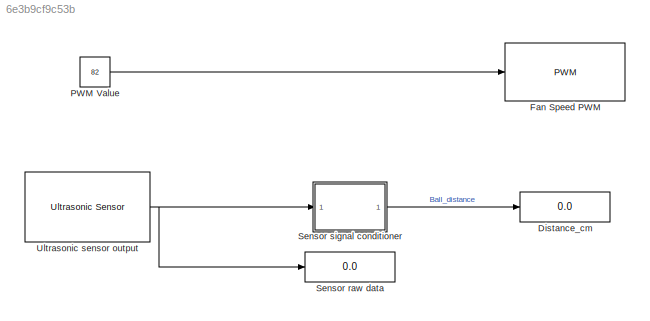
MODEL slx_6e3b9cf9c53b
KIND model
CONFIG AbsTol = auto
CONFIG EnableMultiTasking = off
CONFIG FixedStep = auto
CONFIG MaxStep = auto
CONFIG MinStep = auto
CONFIG RelTol = 1e-3
CONFIG SampleTimeConstraint = Unconstrained
CONFIG SolverName = VariableStepAuto
CONFIG StartTime = 0.0
CONFIG StopTime = 10.0
BLOCK [Display] Distance_cm
  Decimation = 1
BLOCK [Reference] Fan Speed PWM  REF=arduinolib/PWM
  SourceBlock = arduinolib/PWM
  SourceType = Arduino PWM
BLOCK [Constant] PWM Value
  Value = 82
BLOCK [Display] Sensor raw data
  Decimation = 1
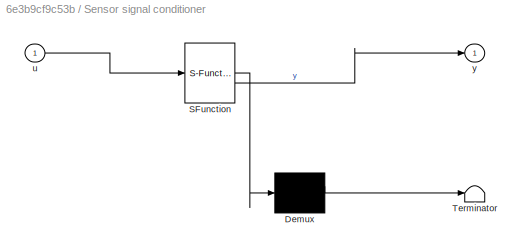
BLOCK [SubSystem] Sensor signal conditioner
  ErrorFcn = Stateflow.Translate.translate
  PermitHierarchicalResolution = ExplicitOnly
  SFBlockType = MATLAB Function
  TreatAsAtomicUnit = on
BLOCK [Demux] Sensor signal conditioner/ Demux 
  Outputs = 1
BLOCK [S-Function] Sensor signal conditioner/ SFunction 
  EnableBusSupport = on
  FunctionName = sf_sfun
  PortCounts = [1 2]
  SFcnIsStateOwnerBlock = off
  SFunctionDeploymentMode = off
  Tag = Stateflow S-Function 2
BLOCK [Terminator] Sensor signal conditioner/ Terminator 
BLOCK [Inport] Sensor signal conditioner/u
BLOCK [Outport] Sensor signal conditioner/y
BLOCK [Reference] Ultrasonic sensor output  REF=arduinosensorlib/Ultrasonic Sensor
  SourceBlock = arduinosensorlib/Ultrasonic Sensor
  SourceType = Arduino Ultrasonic Sensor
LINE PWM Value:1 -> Fan Speed PWM:1
LINE Sensor signal conditioner:1 -> Distance_cm:1
NET Ultrasonic sensor output:1 -> Sensor raw data:1, Sensor signal conditioner:1
note: NET lines group one-source signal fan-out (src -> all destinations, sorted); 1:1 wires keep LINE
CHART Sensor signal conditioner states=1 transitions=1
  STATE_LABEL 'eML_blk_kernel()'
  STATE_LABEL 'SCRIPT:\nfunction y = fcn(u)\n\nMAX_DIST = 30;\n\ny=MAX_DIST-(u*100);'
CHART  states=0 transitions=0
